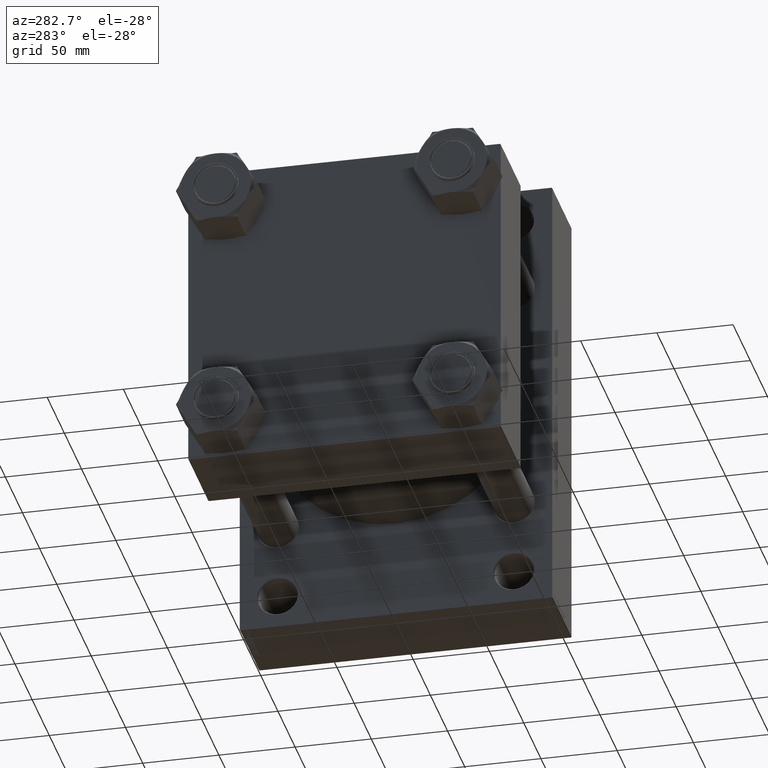
[diagram: clean part render]
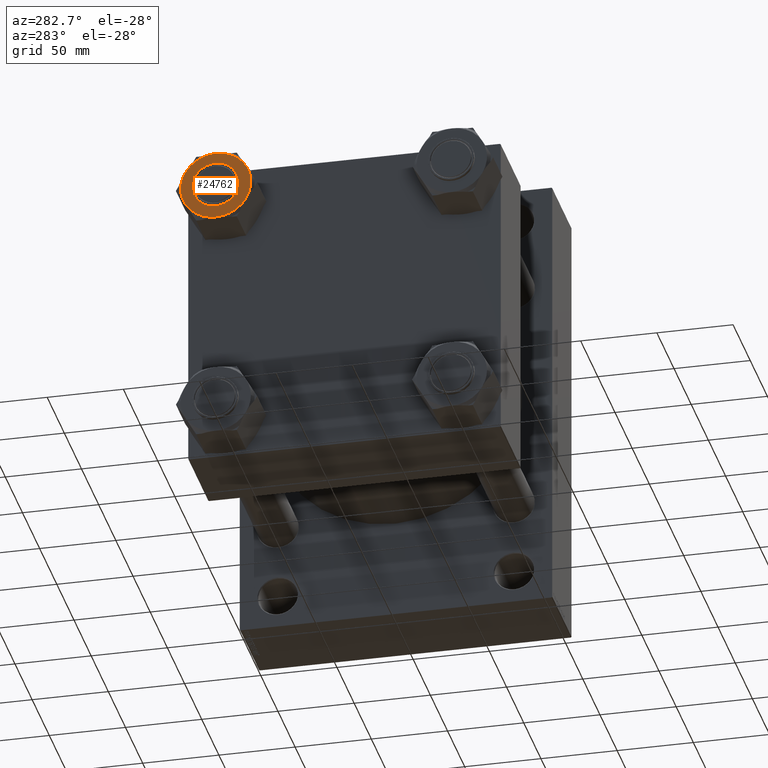
[diagram: same view with one face highlighted and labeled with its STEP entity id]
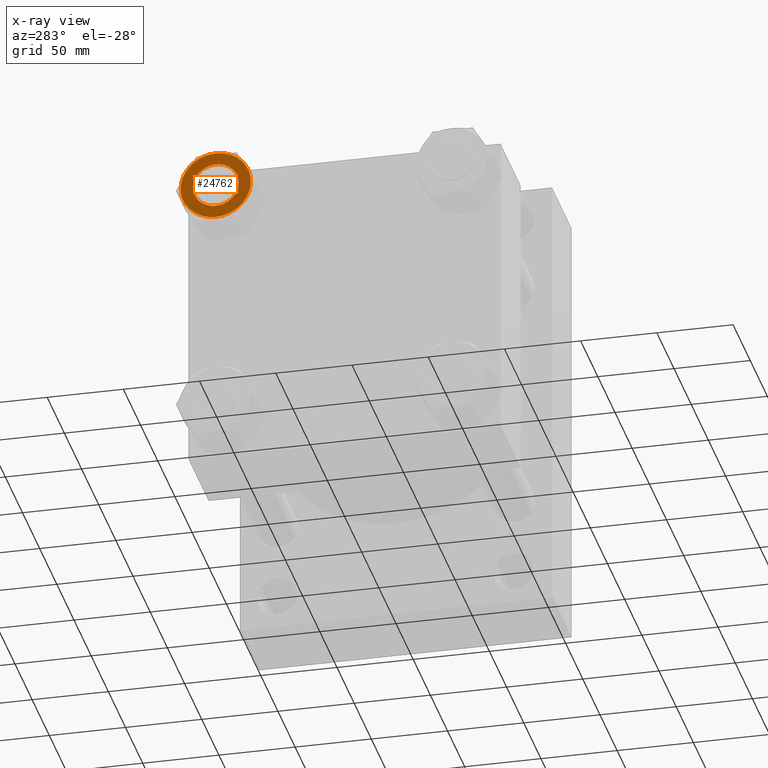
[diagram: x-ray of the same camera — body ghosted, the highlighted face saturated]
A machine part, auxiliary view. The second image highlights one B-rep face of the part: STEP entity #24762.
The next image is the same camera in x-ray: the body ghosted, the highlighted face saturated — about 0% of this face is hidden behind the body in this view.
In plain terms, the highlighted planar face has unit normal (1, 0, 0).
Its self-contained STEP definition (entity closure, byte-faithful):
#81 = DIRECTION ( 'NONE',  ( 1.000000000000000000, 0.000000000000000000, 0.000000000000000000 ) ) ;
#289 = EDGE_CURVE ( 'NONE', #19076, #44805, #1491, .T. ) ;
#336 = AXIS2_PLACEMENT_3D ( 'NONE', #6945, #18489, #4024 ) ;
#797 = DIRECTION ( 'NONE',  ( 0.000000000000000000, 0.000000000000000000, 1.000000000000000000 ) ) ;
#1464 = PLANE ( 'NONE',  #34777 ) ;
#1491 = CIRCLE ( 'NONE', #9226, 15.00000000000000000 ) ;
#2262 = ORIENTED_EDGE ( 'NONE', *, *, #8041, .F. ) ;
#2416 = ORIENTED_EDGE ( 'NONE', *, *, #5604, .F. ) ;
#2617 = CARTESIAN_POINT ( 'NONE',  ( 0.000000000000000000, 0.000000000000000000, 0.000000000000000000 ) ) ;
#2669 = DIRECTION ( 'NONE',  ( -1.000000000000000000, 0.000000000000000000, -0.000000000000000000 ) ) ;
#3533 = CARTESIAN_POINT ( 'NONE',  ( -19.96500000000001762, -11.52679812437087747, 0.000000000000000000 ) ) ;
#3605 = AXIS2_PLACEMENT_3D ( 'NONE', #19362, #797, #81 ) ;
#4024 = DIRECTION ( 'NONE',  ( -1.000000000000000000, 0.000000000000000000, 0.000000000000000000 ) ) ;
#4218 = CARTESIAN_POINT ( 'NONE',  ( -15.00000000000000000, 0.000000000000000000, 0.000000000000000000 ) ) ;
#4974 = EDGE_CURVE ( 'NONE', #29744, #14757, #24345, .T. ) ;
#5120 = EDGE_CURVE ( 'NONE', #17951, #29744, #23538, .T. ) ;
#5604 = EDGE_CURVE ( 'NONE', #14757, #39565, #11262, .T. ) ;
#6945 = CARTESIAN_POINT ( 'NONE',  ( 0.000000000000000000, 0.000000000000000000, 0.000000000000000000 ) ) ;
#7258 = DIRECTION ( 'NONE',  ( -1.000000000000000000, 0.000000000000000000, 0.000000000000000000 ) ) ;
#7811 = DIRECTION ( 'NONE',  ( -1.000000000000000000, 0.000000000000000000, 0.000000000000000000 ) ) ;
#8041 = EDGE_CURVE ( 'NONE', #44805, #19076, #24447, .T. ) ;
#9226 = AXIS2_PLACEMENT_3D ( 'NONE', #18532, #32535, #29608 ) ;
#9538 = DIRECTION ( 'NONE',  ( 1.000000000000000000, 0.000000000000000000, 0.000000000000000000 ) ) ;
#9866 = DIRECTION ( 'NONE',  ( -1.000000000000000000, 0.000000000000000000, 0.000000000000000000 ) ) ;
#10478 = CARTESIAN_POINT ( 'NONE',  ( 0.000000000000000000, 0.000000000000000000, 0.000000000000000000 ) ) ;
#10682 = CIRCLE ( 'NONE', #29131, 23.05359624874176916 ) ;
#10887 = DIRECTION ( 'NONE',  ( 0.000000000000000000, -0.000000000000000000, -1.000000000000000000 ) ) ;
#11262 = CIRCLE ( 'NONE', #38199, 23.05359624874176916 ) ;
#11521 = CARTESIAN_POINT ( 'NONE',  ( 19.96500000000001407, -11.52679812437088813, 0.000000000000000000 ) ) ;
#12875 = DIRECTION ( 'NONE',  ( 0.000000000000000000, -0.000000000000000000, -1.000000000000000000 ) ) ;
#14277 = VERTEX_POINT ( 'NONE', #38364 ) ;
#14757 = VERTEX_POINT ( 'NONE', #3533 ) ;
#15130 = EDGE_CURVE ( 'NONE', #44906, #17951, #10682, .T. ) ;
#15873 = AXIS2_PLACEMENT_3D ( 'NONE', #30220, #12875, #27567 ) ;
#15879 = ORIENTED_EDGE ( 'NONE', *, *, #15130, .F. ) ;
#16286 = ORIENTED_EDGE ( 'NONE', *, *, #4974, .F. ) ;
#17951 = VERTEX_POINT ( 'NONE', #11521 ) ;
#18182 = DIRECTION ( 'NONE',  ( 0.000000000000000000, -0.000000000000000000, -1.000000000000000000 ) ) ;
#18489 = DIRECTION ( 'NONE',  ( 0.000000000000000000, -0.000000000000000000, -1.000000000000000000 ) ) ;
#18532 = CARTESIAN_POINT ( 'NONE',  ( 0.000000000000000000, 0.000000000000000000, 0.000000000000000000 ) ) ;
#19076 = VERTEX_POINT ( 'NONE', #4218 ) ;
#19362 = CARTESIAN_POINT ( 'NONE',  ( 0.000000000000000000, 0.000000000000000000, 0.000000000000000000 ) ) ;
#19784 = FACE_BOUND ( 'NONE', #30274, .T. ) ;
#20606 = AXIS2_PLACEMENT_3D ( 'NONE', #35565, #46626, #9538 ) ;
#22027 = CARTESIAN_POINT ( 'NONE',  ( 0.000000000000000000, 0.000000000000000000, 0.000000000000000000 ) ) ;
#22316 = AXIS2_PLACEMENT_3D ( 'NONE', #36208, #10887, #7258 ) ;
#22496 = DIRECTION ( 'NONE',  ( -1.000000000000000000, 0.000000000000000000, 0.000000000000000000 ) ) ;
#22669 = CIRCLE ( 'NONE', #336, 23.05359624874176916 ) ;
#22958 = CARTESIAN_POINT ( 'NONE',  ( 15.00000000000000000, 1.836970198721029589E-15, 0.000000000000000000 ) ) ;
#23538 = CIRCLE ( 'NONE', #15873, 23.05359624874176916 ) ;
#24345 = CIRCLE ( 'NONE', #38980, 23.05359624874176916 ) ;
#24447 = CIRCLE ( 'NONE', #20606, 15.00000000000000000 ) ;
#24762 = ADVANCED_FACE ( 'NONE', ( #19784, #34499 ), #1464, .F. ) ;
#25513 = ORIENTED_EDGE ( 'NONE', *, *, #47143, .F. ) ;
#27082 = ORIENTED_EDGE ( 'NONE', *, *, #289, .F. ) ;
#27567 = DIRECTION ( 'NONE',  ( -1.000000000000000000, 0.000000000000000000, 0.000000000000000000 ) ) ;
#28852 = DIRECTION ( 'NONE',  ( 0.000000000000000000, -0.000000000000000000, -1.000000000000000000 ) ) ;
#28862 = CARTESIAN_POINT ( 'NONE',  ( 3.004629197474320035E-15, -23.05359624874177271, 0.000000000000000000 ) ) ;
#28896 = CARTESIAN_POINT ( 'NONE',  ( 23.05359624874176916, 0.000000000000000000, 0.000000000000000000 ) ) ;
#29131 = AXIS2_PLACEMENT_3D ( 'NONE', #10478, #33103, #22496 ) ;
#29479 = ORIENTED_EDGE ( 'NONE', *, *, #29688, .F. ) ;
#29608 = DIRECTION ( 'NONE',  ( 1.000000000000000000, 0.000000000000000000, 0.000000000000000000 ) ) ;
#29688 = EDGE_CURVE ( 'NONE', #14277, #44906, #22669, .T. ) ;
#29744 = VERTEX_POINT ( 'NONE', #28862 ) ;
#30220 = CARTESIAN_POINT ( 'NONE',  ( 0.000000000000000000, 0.000000000000000000, 0.000000000000000000 ) ) ;
#30274 = EDGE_LOOP ( 'NONE', ( #27082, #2262 ) ) ;
#32071 = DIRECTION ( 'NONE',  ( 0.000000000000000000, 0.000000000000000000, -1.000000000000000000 ) ) ;
#32535 = DIRECTION ( 'NONE',  ( 0.000000000000000000, 0.000000000000000000, 1.000000000000000000 ) ) ;
#33103 = DIRECTION ( 'NONE',  ( 0.000000000000000000, -0.000000000000000000, -1.000000000000000000 ) ) ;
#33617 = CIRCLE ( 'NONE', #3605, 23.05359624874177271 ) ;
#34499 = FACE_OUTER_BOUND ( 'NONE', #39734, .T. ) ;
#34777 = AXIS2_PLACEMENT_3D ( 'NONE', #35467, #32071, #2669 ) ;
#35113 = EDGE_CURVE ( 'NONE', #14277, #36108, #33617, .T. ) ;
#35467 = CARTESIAN_POINT ( 'NONE',  ( 0.000000000000000000, 0.000000000000000000, 0.000000000000000000 ) ) ;
#35565 = CARTESIAN_POINT ( 'NONE',  ( 0.000000000000000000, 0.000000000000000000, 0.000000000000000000 ) ) ;
#36108 = VERTEX_POINT ( 'NONE', #44199 ) ;
#36199 = CIRCLE ( 'NONE', #22316, 23.05359624874176916 ) ;
#36208 = CARTESIAN_POINT ( 'NONE',  ( 0.000000000000000000, 0.000000000000000000, 0.000000000000000000 ) ) ;
#38199 = AXIS2_PLACEMENT_3D ( 'NONE', #2617, #28852, #9866 ) ;
#38364 = CARTESIAN_POINT ( 'NONE',  ( 19.96500000000001762, 11.52679812437088458, 0.000000000000000000 ) ) ;
#38980 = AXIS2_PLACEMENT_3D ( 'NONE', #22027, #18182, #7811 ) ;
#39565 = VERTEX_POINT ( 'NONE', #42166 ) ;
#39734 = EDGE_LOOP ( 'NONE', ( #25513, #2416, #16286, #45575, #15879, #29479, #42200 ) ) ;
#42166 = CARTESIAN_POINT ( 'NONE',  ( -19.96500000000001407, 11.52679812437088813, 0.000000000000000000 ) ) ;
#42200 = ORIENTED_EDGE ( 'NONE', *, *, #35113, .T. ) ;
#44199 = CARTESIAN_POINT ( 'NONE',  ( 0.000000000000000000, 23.05359624874177271, 0.000000000000000000 ) ) ;
#44805 = VERTEX_POINT ( 'NONE', #22958 ) ;
#44906 = VERTEX_POINT ( 'NONE', #28896 ) ;
#45575 = ORIENTED_EDGE ( 'NONE', *, *, #5120, .F. ) ;
#46626 = DIRECTION ( 'NONE',  ( 0.000000000000000000, 0.000000000000000000, 1.000000000000000000 ) ) ;
#47143 = EDGE_CURVE ( 'NONE', #39565, #36108, #36199, .T. ) ;